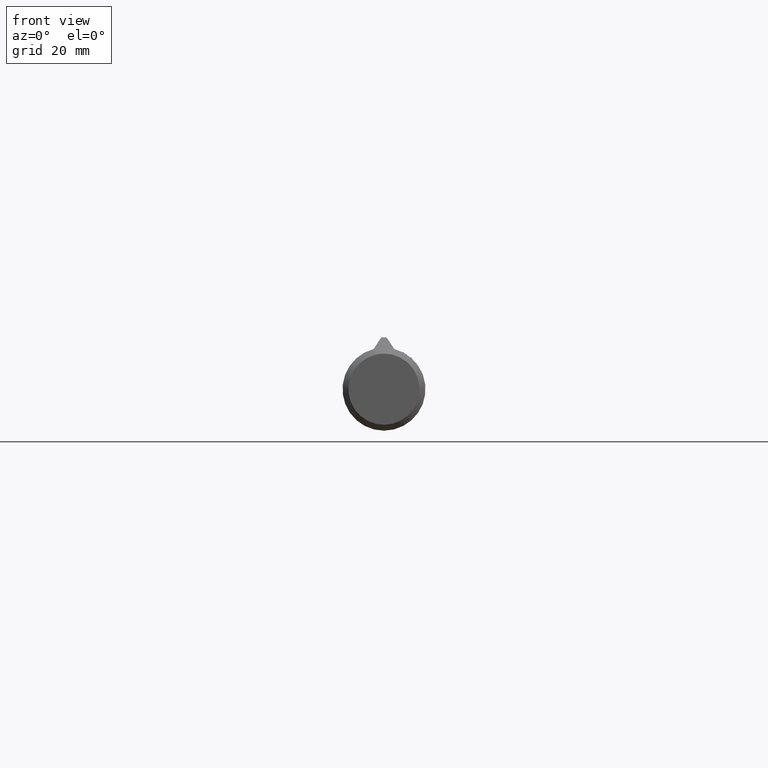
[diagram: clean part render]
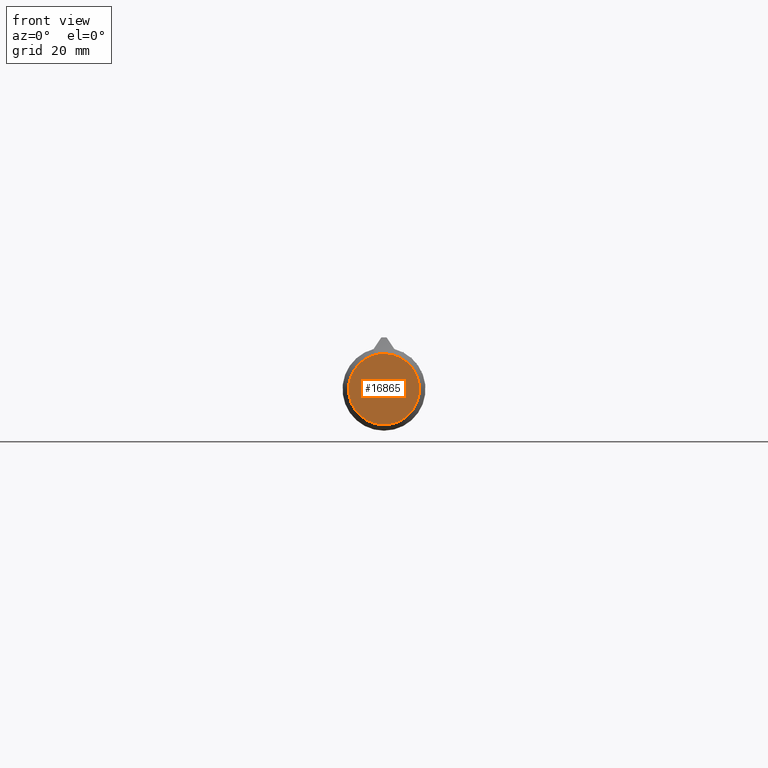
[diagram: same view with one face highlighted and labeled with its STEP entity id]
A machine part, front view. The second image highlights one B-rep face of the part: STEP entity #16865.
In plain terms, the highlighted planar face has unit normal (-0, 1, 0).
Its self-contained STEP definition (entity closure, byte-faithful):
#442 = CARTESIAN_POINT ( 'NONE',  ( -6.414635304221269551E-47, -3.912045199536572827E-32, -6.861073782688430711 ) ) ;
#610 = DIRECTION ( 'NONE',  ( -2.886579864025390439E-15, -1.000000000000000000, -3.798257421772986577E-18 ) ) ;
#1481 = PLANE ( 'NONE',  #3602 ) ;
#1698 = ORIENTED_EDGE ( 'NONE', *, *, #7914, .T. ) ;
#3253 = VERTEX_POINT ( 'NONE', #442 ) ;
#3602 = AXIS2_PLACEMENT_3D ( 'NONE', #5542, #6396, #7686 ) ;
#5542 = CARTESIAN_POINT ( 'NONE',  ( 0.000000000000000000, 0.000000000000000000, 0.000000000000000000 ) ) ;
#6014 = CIRCLE ( 'NONE', #6937, 6.861073782688430711 ) ;
#6396 = DIRECTION ( 'NONE',  ( 2.886579864025390439E-15, 1.000000000000000000, -0.000000000000000000 ) ) ;
#6937 = AXIS2_PLACEMENT_3D ( 'NONE', #9875, #610, #12390 ) ;
#7686 = DIRECTION ( 'NONE',  ( 0.000000000000000000, 0.000000000000000000, 1.000000000000000000 ) ) ;
#7914 = EDGE_CURVE ( 'NONE', #3253, #3253, #6014, .T. ) ;
#9875 = CARTESIAN_POINT ( 'NONE',  ( -7.522463039446039449E-32, -2.606012441642900639E-17, -9.898306097702885948E-35 ) ) ;
#12390 = DIRECTION ( 'NONE',  ( 1.096397339207514634E-32, 3.798257421773070547E-18, -1.000000000000000000 ) ) ;
#14954 = EDGE_LOOP ( 'NONE', ( #1698 ) ) ;
#15069 = FACE_OUTER_BOUND ( 'NONE', #14954, .T. ) ;
#16865 = ADVANCED_FACE ( 'NONE', ( #15069 ), #1481, .F. ) ;